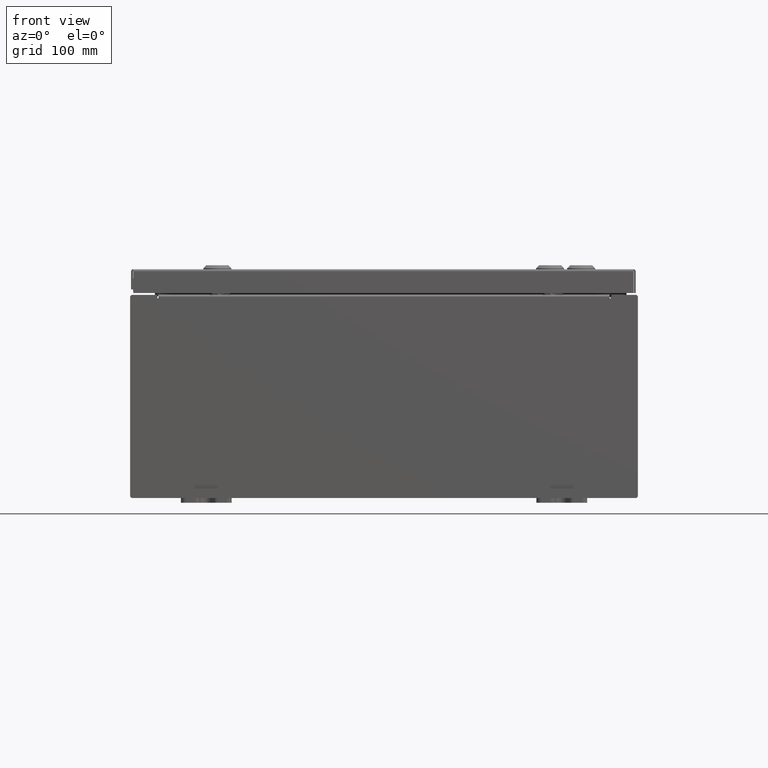
[diagram: clean part render]
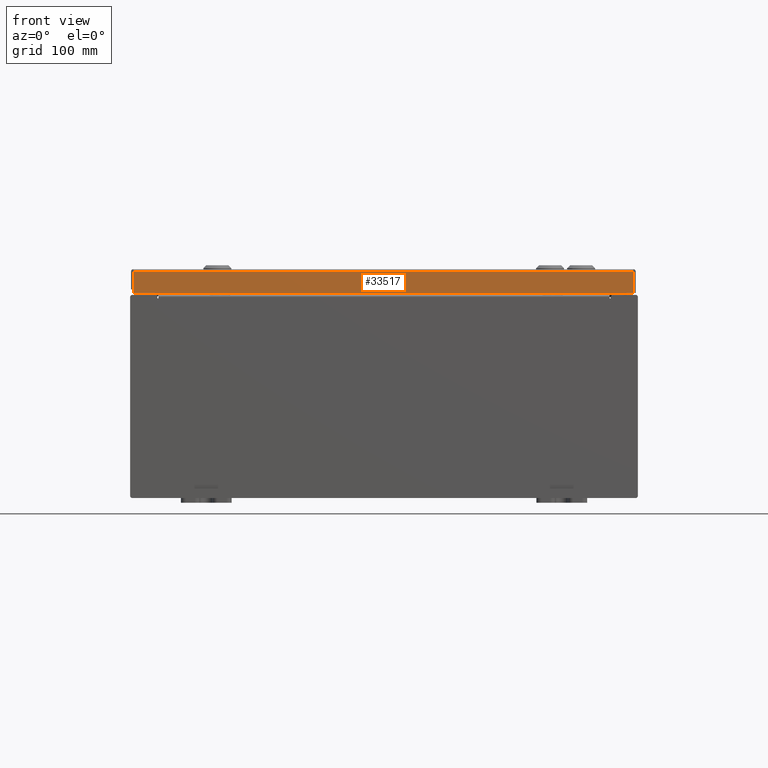
[diagram: same view with one face highlighted and labeled with its STEP entity id]
A machine part, front view. The second image highlights one B-rep face of the part: STEP entity #33517.
In plain terms, the highlighted planar face has unit normal (-0, 1, -0).
Its self-contained STEP definition (entity closure, byte-faithful):
#2911 = VERTEX_POINT ( 'NONE', #5186 ) ;
#4218 = EDGE_LOOP ( 'NONE', ( #5896, #61070, #30362, #16462 ) ) ;
#5186 = CARTESIAN_POINT ( 'NONE',  ( 9.848657864376271200, -7.937500000000002700, -0.9376999999999997600 ) ) ;
#5896 = ORIENTED_EDGE ( 'NONE', *, *, #54146, .F. ) ;
#6522 = VECTOR ( 'NONE', #29016, 39.37007874015748100 ) ;
#6872 = CARTESIAN_POINT ( 'NONE',  ( 9.848657864376273000, -7.937499999999999100, -0.08769999999999997200 ) ) ;
#11193 = DIRECTION ( 'NONE',  ( 0.0000000000000000000, 3.798629886902798700E-015, 1.000000000000000000 ) ) ;
#12670 = CARTESIAN_POINT ( 'NONE',  ( 9.937500000000001800, -7.937500000000002700, -0.9376999999999997600 ) ) ;
#13556 = AXIS2_PLACEMENT_3D ( 'NONE', #35378, #40309, #11193 ) ;
#15869 = PLANE ( 'NONE',  #13556 ) ;
#16462 = ORIENTED_EDGE ( 'NONE', *, *, #48531, .F. ) ;
#16834 = EDGE_CURVE ( 'NONE', #31139, #18970, #24572, .T. ) ;
#18970 = VERTEX_POINT ( 'NONE', #31347 ) ;
#20116 = VERTEX_POINT ( 'NONE', #6872 ) ;
#22132 = LINE ( 'NONE', #56440, #59347 ) ;
#22601 = CARTESIAN_POINT ( 'NONE',  ( -9.848657864376269400, -7.937499999999999100, -0.08769999999999997200 ) ) ;
#24572 = LINE ( 'NONE', #35771, #35918 ) ;
#25505 = FACE_OUTER_BOUND ( 'NONE', #4218, .T. ) ;
#29016 = DIRECTION ( 'NONE',  ( 1.000000000000000000, 4.699145404622725200E-031, -1.802587771145536000E-045 ) ) ;
#30355 = EDGE_CURVE ( 'NONE', #2911, #18970, #44690, .T. ) ;
#30362 = ORIENTED_EDGE ( 'NONE', *, *, #30355, .F. ) ;
#31139 = VERTEX_POINT ( 'NONE', #22601 ) ;
#31347 = CARTESIAN_POINT ( 'NONE',  ( -9.848657864376269400, -7.937500000000002700, -0.9376999999999973100 ) ) ;
#33326 = VECTOR ( 'NONE', #46654, 39.37007874015748100 ) ;
#33517 = ADVANCED_FACE ( 'NONE', ( #25505 ), #15869, .F. ) ;
#35378 = CARTESIAN_POINT ( 'NONE',  ( 3.729946664919287400E-030, -7.937499999999999100, 3.041243838330254400E-014 ) ) ;
#35771 = CARTESIAN_POINT ( 'NONE',  ( -9.848657864376265900, -7.937499999999999100, 3.041243838330254400E-014 ) ) ;
#35918 = VECTOR ( 'NONE', #60003, 39.37007874015748100 ) ;
#40309 = DIRECTION ( 'NONE',  ( -4.699145404622725200E-031, 1.000000000000000000, -3.798629886902798700E-015 ) ) ;
#44690 = LINE ( 'NONE', #12670, #33326 ) ;
#46654 = DIRECTION ( 'NONE',  ( -1.000000000000000000, 8.758115402030108600E-047, 1.237063242414006300E-016 ) ) ;
#48531 = EDGE_CURVE ( 'NONE', #20116, #2911, #22132, .T. ) ;
#53442 = CARTESIAN_POINT ( 'NONE',  ( 9.937500000000001800, -7.937499999999999100, -0.08769999999999997200 ) ) ;
#54146 = EDGE_CURVE ( 'NONE', #31139, #20116, #58293, .T. ) ;
#56440 = CARTESIAN_POINT ( 'NONE',  ( 9.848657864376271200, -7.937499999999999100, -0.07469999999999972500 ) ) ;
#58293 = LINE ( 'NONE', #53442, #6522 ) ;
#59347 = VECTOR ( 'NONE', #61302, 39.37007874015748100 ) ;
#60003 = DIRECTION ( 'NONE',  ( 0.0000000000000000000, -3.798629886902798700E-015, -1.000000000000000000 ) ) ;
#61070 = ORIENTED_EDGE ( 'NONE', *, *, #16834, .T. ) ;
#61302 = DIRECTION ( 'NONE',  ( -0.0000000000000000000, -3.798629886902798700E-015, -1.000000000000000000 ) ) ;